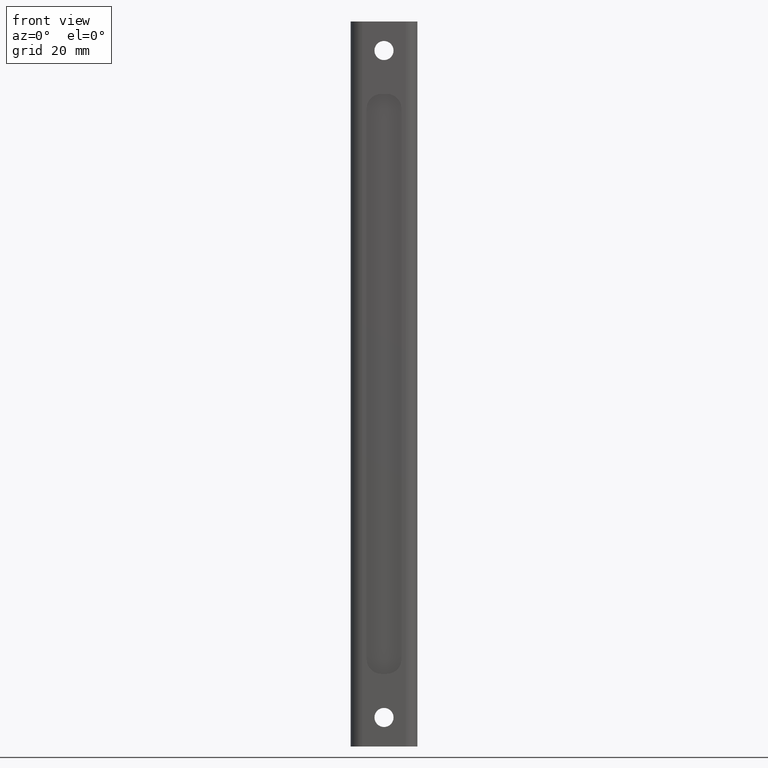
[diagram: clean part render]
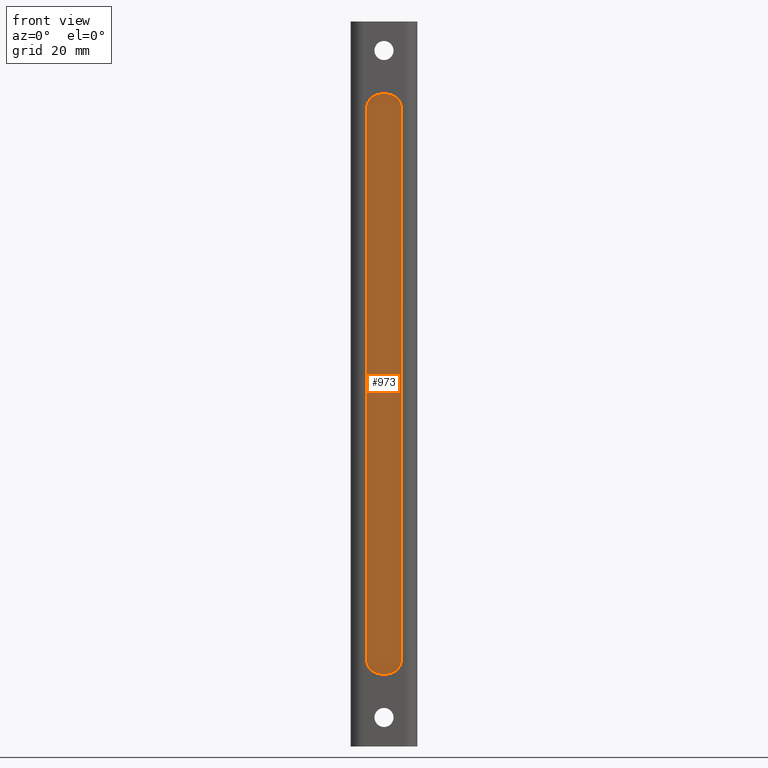
[diagram: same view with one face highlighted and labeled with its STEP entity id]
A machine part, front view. The second image highlights one B-rep face of the part: STEP entity #973.
In plain terms, the highlighted planar face has unit normal (0, 1, -0).
Its self-contained STEP definition (entity closure, byte-faithful):
#48=CIRCLE('',#1044,5.);
#49=CIRCLE('',#1045,5.);
#50=CIRCLE('',#1046,5.);
#51=CIRCLE('',#1047,5.);
#104=ORIENTED_EDGE('',*,*,#392,.F.);
#105=ORIENTED_EDGE('',*,*,#393,.T.);
#106=ORIENTED_EDGE('',*,*,#394,.F.);
#107=ORIENTED_EDGE('',*,*,#395,.T.);
#108=ORIENTED_EDGE('',*,*,#396,.F.);
#109=ORIENTED_EDGE('',*,*,#397,.T.);
#110=ORIENTED_EDGE('',*,*,#398,.F.);
#111=ORIENTED_EDGE('',*,*,#399,.T.);
#392=EDGE_CURVE('',#536,#537,#632,.T.);
#393=EDGE_CURVE('',#536,#538,#48,.T.);
#394=EDGE_CURVE('',#539,#538,#633,.T.);
#395=EDGE_CURVE('',#539,#540,#49,.T.);
#396=EDGE_CURVE('',#541,#540,#634,.T.);
#397=EDGE_CURVE('',#541,#542,#50,.T.);
#398=EDGE_CURVE('',#543,#542,#635,.T.);
#399=EDGE_CURVE('',#543,#537,#51,.T.);
#536=VERTEX_POINT('',#1475);
#537=VERTEX_POINT('',#1476);
#538=VERTEX_POINT('',#1478);
#539=VERTEX_POINT('',#1480);
#540=VERTEX_POINT('',#1482);
#541=VERTEX_POINT('',#1484);
#542=VERTEX_POINT('',#1486);
#543=VERTEX_POINT('',#1488);
#632=LINE('',#1474,#720);
#633=LINE('',#1479,#721);
#634=LINE('',#1483,#722);
#635=LINE('',#1487,#723);
#720=VECTOR('',#1160,1000.);
#721=VECTOR('',#1163,1000.);
#722=VECTOR('',#1166,1000.);
#723=VECTOR('',#1169,1000.);
#808=EDGE_LOOP('',(#104,#105,#106,#107,#108,#109,#110,#111));
#876=FACE_BOUND('',#808,.T.);
#944=PLANE('',#1043);
#973=ADVANCED_FACE('',(#876),#944,.F.);
#1043=AXIS2_PLACEMENT_3D('',#1473,#1158,#1159);
#1044=AXIS2_PLACEMENT_3D('',#1477,#1161,#1162);
#1045=AXIS2_PLACEMENT_3D('',#1481,#1164,#1165);
#1046=AXIS2_PLACEMENT_3D('',#1485,#1167,#1168);
#1047=AXIS2_PLACEMENT_3D('',#1489,#1170,#1171);
#1158=DIRECTION('',(4.06163832661068E-16,1.,-3.32494788514936E-15));
#1159=DIRECTION('',(-1.,4.06163832661068E-16,6.76398658185478E-32));
#1160=DIRECTION('',(-8.93686180177302E-17,-1.66533453693773E-16,1.));
#1161=DIRECTION('',(-4.06163832661068E-16,-1.,-1.66533453693773E-16));
#1162=DIRECTION('',(-1.,4.06163832661068E-16,-8.93686180177302E-17));
#1163=DIRECTION('',(-1.,4.06163832661068E-16,-8.93686180177302E-17));
#1164=DIRECTION('',(-4.06163832661068E-16,-1.,-1.66533453693773E-16));
#1165=DIRECTION('',(-1.,4.06163832661068E-16,-8.93686180177302E-17));
#1166=DIRECTION('',(8.93686180177302E-17,1.66533453693773E-16,-1.));
#1167=DIRECTION('',(-4.06163832661068E-16,-1.,-1.66533453693773E-16));
#1168=DIRECTION('',(-1.,4.06163832661068E-16,-8.93686180177302E-17));
#1169=DIRECTION('',(1.,-4.06163832661068E-16,8.93686180177302E-17));
#1170=DIRECTION('',(-4.06163832661068E-16,-1.,-1.66533453693773E-16));
#1171=DIRECTION('',(-1.,4.06163832661068E-16,-8.93686180177302E-17));
#1473=CARTESIAN_POINT('',(4.05776737694852E-15,-23.0000000000003,-3.28184349361263E-14));
#1474=CARTESIAN_POINT('',(-6.00000000000002,-23.,-4.00565866005999E-15));
#1475=CARTESIAN_POINT('',(-5.99999999999993,-23.,-95.0000000000001));
#1476=CARTESIAN_POINT('',(-6.00000000000005,-23.,95.0000000000001));
#1477=CARTESIAN_POINT('',(-0.999999999999935,-23.,-95.0000000000001));
#1478=CARTESIAN_POINT('',(-0.999999999999935,-23.,-100.));
#1479=CARTESIAN_POINT('',(7.55634866785534E-14,-23.,-100.));
#1480=CARTESIAN_POINT('',(1.00000000000007,-23.,-100.));
#1481=CARTESIAN_POINT('',(1.00000000000007,-23.,-95.0000000000001));
#1482=CARTESIAN_POINT('',(6.00000000000007,-23.,-95.0000000000001));
#1483=CARTESIAN_POINT('',(5.99999999999998,-23.,-2.93323524384723E-15));
#1484=CARTESIAN_POINT('',(5.99999999999995,-23.,95.0000000000001));
#1485=CARTESIAN_POINT('',(0.999999999999956,-23.,95.0000000000001));
#1486=CARTESIAN_POINT('',(0.999999999999955,-23.,100.));
#1487=CARTESIAN_POINT('',(-3.42505811517635E-14,-23.,100.));
#1488=CARTESIAN_POINT('',(-1.00000000000005,-23.,100.));
#1489=CARTESIAN_POINT('',(-1.00000000000005,-23.,95.0000000000001));